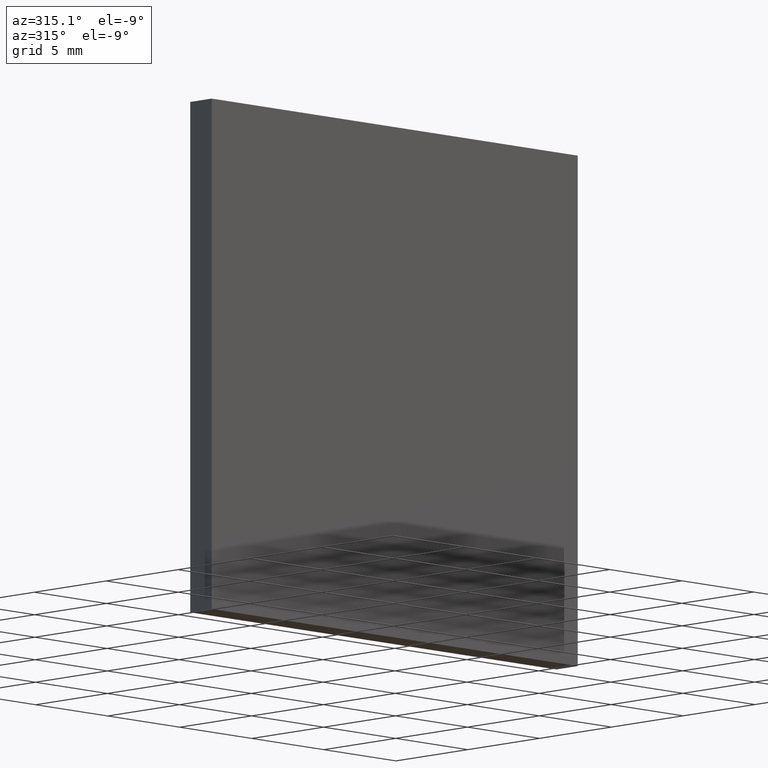
[diagram: clean part render]
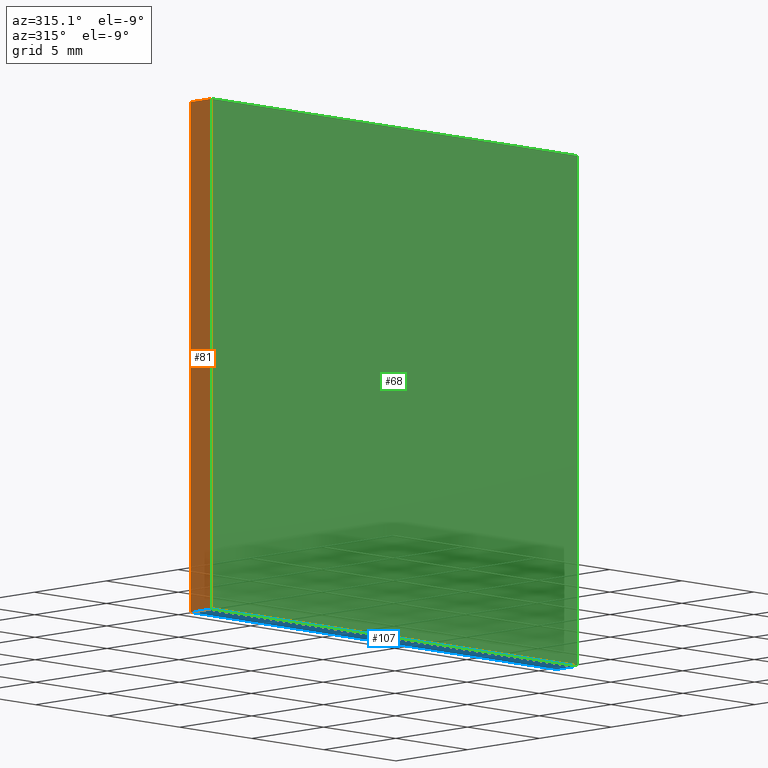
[diagram: same view with three faces highlighted in distinct colors, each labeled with its STEP entity id]
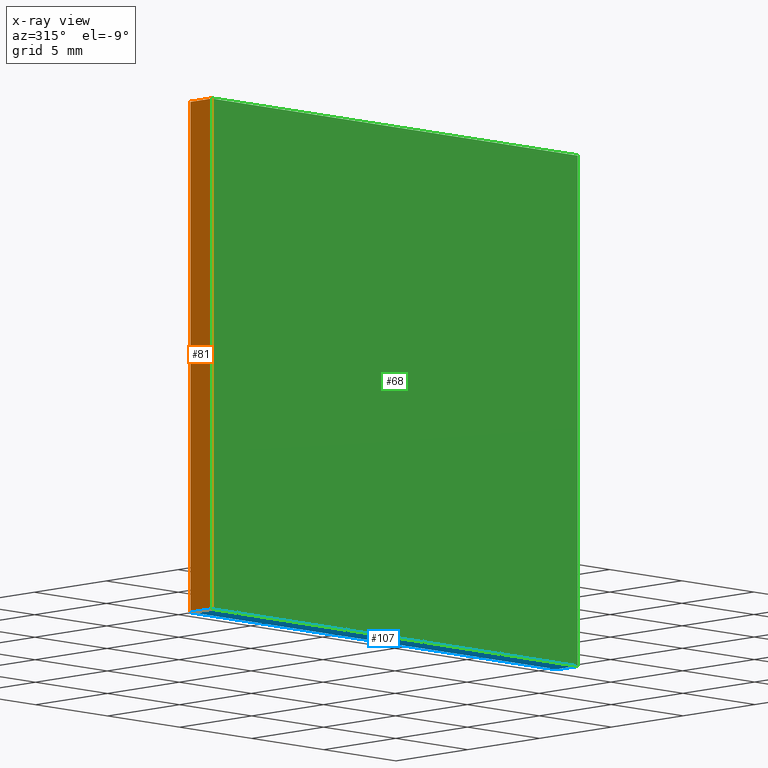
[diagram: x-ray of the same camera — body ghosted, the three highlighted faces saturated]
A machine part, auxiliary view with three faces highlighted in distinct colors.
The next image is the same camera in x-ray (body ghosted, the three faces saturated) — at least one of them is partly hidden behind the body in this view.
Their STEP definitions:

[orange] entity #81 — the highlighted planar face has unit normal (1, -0, 0).
#1 = CARTESIAN_POINT ( 'NONE',  ( -12.70000000000000100, 0.0000000000000000000, -12.69999999999999800 ) ) ;
#4 = CARTESIAN_POINT ( 'NONE',  ( -12.70000000000000100, 1.500000000000000000, 12.69999999999999900 ) ) ;
#19 = CARTESIAN_POINT ( 'NONE',  ( -12.70000000000000100, 1.500000000000000000, -12.69999999999999800 ) ) ;
#36 = VECTOR ( 'NONE', #150, 1000.000000000000000 ) ;
#40 = DIRECTION ( 'NONE',  ( 0.0000000000000000000, 0.0000000000000000000, -1.000000000000000000 ) ) ;
#45 = VERTEX_POINT ( 'NONE', #145 ) ;
#48 = PLANE ( 'NONE',  #84 ) ;
#51 = EDGE_CURVE ( 'NONE', #132, #200, #86, .T. ) ;
#69 = FACE_OUTER_BOUND ( 'NONE', #161, .T. ) ;
#72 = DIRECTION ( 'NONE',  ( -0.0000000000000000000, -1.000000000000000000, -0.0000000000000000000 ) ) ;
#78 = ORIENTED_EDGE ( 'NONE', *, *, #191, .F. ) ;
#81 = ADVANCED_FACE ( 'NONE', ( #69 ), #48, .F. ) ;
#84 = AXIS2_PLACEMENT_3D ( 'NONE', #146, #163, #40 ) ;
#86 = LINE ( 'NONE', #123, #183 ) ;
#87 = EDGE_CURVE ( 'NONE', #132, #45, #190, .T. ) ;
#88 = DIRECTION ( 'NONE',  ( -0.0000000000000000000, -0.0000000000000000000, 1.000000000000000000 ) ) ;
#92 = EDGE_CURVE ( 'NONE', #200, #141, #104, .T. ) ;
#95 = LINE ( 'NONE', #133, #135 ) ;
#104 = LINE ( 'NONE', #116, #36 ) ;
#112 = ORIENTED_EDGE ( 'NONE', *, *, #87, .F. ) ;
#116 = CARTESIAN_POINT ( 'NONE',  ( -12.70000000000000100, 0.0000000000000000000, 12.69999999999999900 ) ) ;
#122 = ORIENTED_EDGE ( 'NONE', *, *, #51, .T. ) ;
#123 = CARTESIAN_POINT ( 'NONE',  ( -12.70000000000000100, 1.500000000000000000, -12.69999999999999800 ) ) ;
#132 = VERTEX_POINT ( 'NONE', #19 ) ;
#133 = CARTESIAN_POINT ( 'NONE',  ( -12.70000000000000100, 1.500000000000000000, 12.69999999999999900 ) ) ;
#134 = CARTESIAN_POINT ( 'NONE',  ( -12.70000000000000100, 0.0000000000000000000, 12.69999999999999900 ) ) ;
#135 = VECTOR ( 'NONE', #170, 1000.000000000000000 ) ;
#136 = VECTOR ( 'NONE', #88, 1000.000000000000000 ) ;
#141 = VERTEX_POINT ( 'NONE', #134 ) ;
#145 = CARTESIAN_POINT ( 'NONE',  ( -12.70000000000000100, 1.500000000000000000, 12.69999999999999900 ) ) ;
#146 = CARTESIAN_POINT ( 'NONE',  ( -12.70000000000000100, 1.500000000000000000, 12.69999999999999900 ) ) ;
#150 = DIRECTION ( 'NONE',  ( -0.0000000000000000000, -0.0000000000000000000, 1.000000000000000000 ) ) ;
#151 = ORIENTED_EDGE ( 'NONE', *, *, #92, .T. ) ;
#161 = EDGE_LOOP ( 'NONE', ( #151, #78, #112, #122 ) ) ;
#163 = DIRECTION ( 'NONE',  ( 1.000000000000000000, -0.0000000000000000000, 0.0000000000000000000 ) ) ;
#170 = DIRECTION ( 'NONE',  ( -0.0000000000000000000, -1.000000000000000000, -0.0000000000000000000 ) ) ;
#183 = VECTOR ( 'NONE', #72, 1000.000000000000000 ) ;
#190 = LINE ( 'NONE', #4, #136 ) ;
#191 = EDGE_CURVE ( 'NONE', #45, #141, #95, .T. ) ;
#200 = VERTEX_POINT ( 'NONE', #1 ) ;

[blue] entity #107 — the highlighted planar face has unit normal (0, 0, 1).
#1 = CARTESIAN_POINT ( 'NONE',  ( -12.70000000000000100, 0.0000000000000000000, -12.69999999999999800 ) ) ;
#5 = ORIENTED_EDGE ( 'NONE', *, *, #194, .T. ) ;
#6 = VERTEX_POINT ( 'NONE', #64 ) ;
#17 = LINE ( 'NONE', #21, #79 ) ;
#18 = DIRECTION ( 'NONE',  ( -1.000000000000000000, -0.0000000000000000000, -0.0000000000000000000 ) ) ;
#19 = CARTESIAN_POINT ( 'NONE',  ( -12.70000000000000100, 1.500000000000000000, -12.69999999999999800 ) ) ;
#21 = CARTESIAN_POINT ( 'NONE',  ( 12.69999999999999800, 1.500000000000000000, -12.69999999999999800 ) ) ;
#25 = LINE ( 'NONE', #67, #28 ) ;
#27 = CARTESIAN_POINT ( 'NONE',  ( 12.69999999999999800, 1.500000000000000000, -12.69999999999999800 ) ) ;
#28 = VECTOR ( 'NONE', #157, 1000.000000000000000 ) ;
#38 = VECTOR ( 'NONE', #18, 1000.000000000000000 ) ;
#41 = VERTEX_POINT ( 'NONE', #27 ) ;
#44 = ORIENTED_EDGE ( 'NONE', *, *, #105, .F. ) ;
#51 = EDGE_CURVE ( 'NONE', #132, #200, #86, .T. ) ;
#56 = DIRECTION ( 'NONE',  ( -0.0000000000000000000, -1.000000000000000000, -0.0000000000000000000 ) ) ;
#60 = LINE ( 'NONE', #102, #38 ) ;
#61 = DIRECTION ( 'NONE',  ( 0.0000000000000000000, 0.0000000000000000000, 1.000000000000000000 ) ) ;
#64 = CARTESIAN_POINT ( 'NONE',  ( 12.69999999999999800, 0.0000000000000000000, -12.69999999999999800 ) ) ;
#67 = CARTESIAN_POINT ( 'NONE',  ( -12.70000000000000100, 1.500000000000000000, -12.69999999999999800 ) ) ;
#71 = ORIENTED_EDGE ( 'NONE', *, *, #128, .T. ) ;
#72 = DIRECTION ( 'NONE',  ( -0.0000000000000000000, -1.000000000000000000, -0.0000000000000000000 ) ) ;
#74 = CARTESIAN_POINT ( 'NONE',  ( -12.70000000000000100, 1.500000000000000000, -12.69999999999999800 ) ) ;
#79 = VECTOR ( 'NONE', #56, 1000.000000000000000 ) ;
#86 = LINE ( 'NONE', #123, #183 ) ;
#102 = CARTESIAN_POINT ( 'NONE',  ( -12.70000000000000100, 0.0000000000000000000, -12.69999999999999800 ) ) ;
#105 = EDGE_CURVE ( 'NONE', #41, #132, #25, .T. ) ;
#106 = AXIS2_PLACEMENT_3D ( 'NONE', #74, #61, #139 ) ;
#107 = ADVANCED_FACE ( 'NONE', ( #168 ), #174, .F. ) ;
#123 = CARTESIAN_POINT ( 'NONE',  ( -12.70000000000000100, 1.500000000000000000, -12.69999999999999800 ) ) ;
#128 = EDGE_CURVE ( 'NONE', #41, #6, #17, .T. ) ;
#132 = VERTEX_POINT ( 'NONE', #19 ) ;
#139 = DIRECTION ( 'NONE',  ( 1.000000000000000000, 0.0000000000000000000, -0.0000000000000000000 ) ) ;
#157 = DIRECTION ( 'NONE',  ( -1.000000000000000000, -0.0000000000000000000, -0.0000000000000000000 ) ) ;
#165 = ORIENTED_EDGE ( 'NONE', *, *, #51, .F. ) ;
#168 = FACE_OUTER_BOUND ( 'NONE', #169, .T. ) ;
#169 = EDGE_LOOP ( 'NONE', ( #5, #165, #44, #71 ) ) ;
#174 = PLANE ( 'NONE',  #106 ) ;
#183 = VECTOR ( 'NONE', #72, 1000.000000000000000 ) ;
#194 = EDGE_CURVE ( 'NONE', #6, #200, #60, .T. ) ;
#200 = VERTEX_POINT ( 'NONE', #1 ) ;

[green] entity #68 — the highlighted planar face has unit normal (0, -1, 0).
#1 = CARTESIAN_POINT ( 'NONE',  ( -12.70000000000000100, 0.0000000000000000000, -12.69999999999999800 ) ) ;
#3 = ORIENTED_EDGE ( 'NONE', *, *, #194, .F. ) ;
#6 = VERTEX_POINT ( 'NONE', #64 ) ;
#12 = CARTESIAN_POINT ( 'NONE',  ( 12.69999999999999800, 0.0000000000000000000, 12.69999999999999900 ) ) ;
#18 = DIRECTION ( 'NONE',  ( -1.000000000000000000, -0.0000000000000000000, -0.0000000000000000000 ) ) ;
#29 = PLANE ( 'NONE',  #70 ) ;
#35 = VERTEX_POINT ( 'NONE', #47 ) ;
#36 = VECTOR ( 'NONE', #150, 1000.000000000000000 ) ;
#38 = VECTOR ( 'NONE', #18, 1000.000000000000000 ) ;
#39 = EDGE_CURVE ( 'NONE', #35, #6, #109, .T. ) ;
#47 = CARTESIAN_POINT ( 'NONE',  ( 12.69999999999999800, 0.0000000000000000000, 12.69999999999999900 ) ) ;
#60 = LINE ( 'NONE', #102, #38 ) ;
#62 = CARTESIAN_POINT ( 'NONE',  ( 0.0000000000000000000, 0.0000000000000000000, 0.0000000000000000000 ) ) ;
#63 = ORIENTED_EDGE ( 'NONE', *, *, #156, .F. ) ;
#64 = CARTESIAN_POINT ( 'NONE',  ( 12.69999999999999800, 0.0000000000000000000, -12.69999999999999800 ) ) ;
#65 = ORIENTED_EDGE ( 'NONE', *, *, #92, .F. ) ;
#68 = ADVANCED_FACE ( 'NONE', ( #155 ), #29, .T. ) ;
#70 = AXIS2_PLACEMENT_3D ( 'NONE', #62, #160, #124 ) ;
#90 = LINE ( 'NONE', #113, #125 ) ;
#92 = EDGE_CURVE ( 'NONE', #200, #141, #104, .T. ) ;
#102 = CARTESIAN_POINT ( 'NONE',  ( -12.70000000000000100, 0.0000000000000000000, -12.69999999999999800 ) ) ;
#104 = LINE ( 'NONE', #116, #36 ) ;
#108 = DIRECTION ( 'NONE',  ( 0.0000000000000000000, 0.0000000000000000000, -1.000000000000000000 ) ) ;
#109 = LINE ( 'NONE', #12, #117 ) ;
#113 = CARTESIAN_POINT ( 'NONE',  ( -12.70000000000000100, 0.0000000000000000000, 12.69999999999999900 ) ) ;
#116 = CARTESIAN_POINT ( 'NONE',  ( -12.70000000000000100, 0.0000000000000000000, 12.69999999999999900 ) ) ;
#117 = VECTOR ( 'NONE', #108, 1000.000000000000000 ) ;
#124 = DIRECTION ( 'NONE',  ( 0.0000000000000000000, -0.0000000000000000000, -1.000000000000000000 ) ) ;
#125 = VECTOR ( 'NONE', #189, 1000.000000000000000 ) ;
#134 = CARTESIAN_POINT ( 'NONE',  ( -12.70000000000000100, 0.0000000000000000000, 12.69999999999999900 ) ) ;
#141 = VERTEX_POINT ( 'NONE', #134 ) ;
#150 = DIRECTION ( 'NONE',  ( -0.0000000000000000000, -0.0000000000000000000, 1.000000000000000000 ) ) ;
#155 = FACE_OUTER_BOUND ( 'NONE', #177, .T. ) ;
#156 = EDGE_CURVE ( 'NONE', #141, #35, #90, .T. ) ;
#160 = DIRECTION ( 'NONE',  ( 0.0000000000000000000, -1.000000000000000000, 0.0000000000000000000 ) ) ;
#177 = EDGE_LOOP ( 'NONE', ( #188, #63, #65, #3 ) ) ;
#188 = ORIENTED_EDGE ( 'NONE', *, *, #39, .F. ) ;
#189 = DIRECTION ( 'NONE',  ( 1.000000000000000000, 0.0000000000000000000, 0.0000000000000000000 ) ) ;
#194 = EDGE_CURVE ( 'NONE', #6, #200, #60, .T. ) ;
#200 = VERTEX_POINT ( 'NONE', #1 ) ;